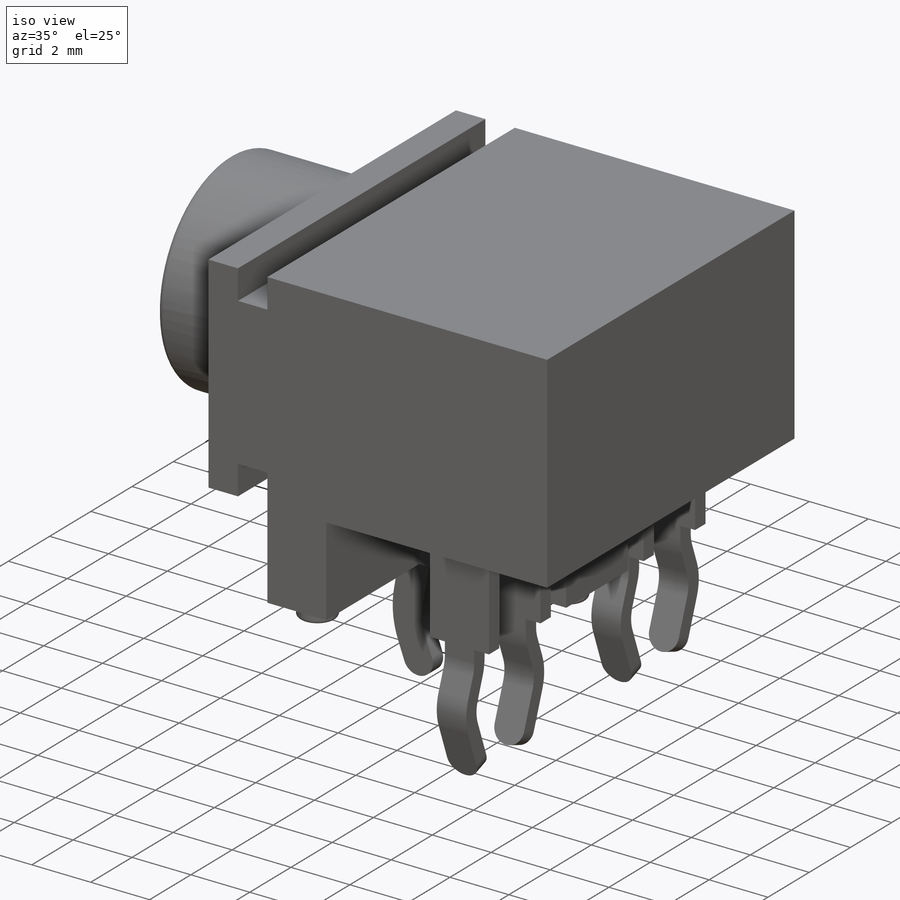
[diagram: iso view]
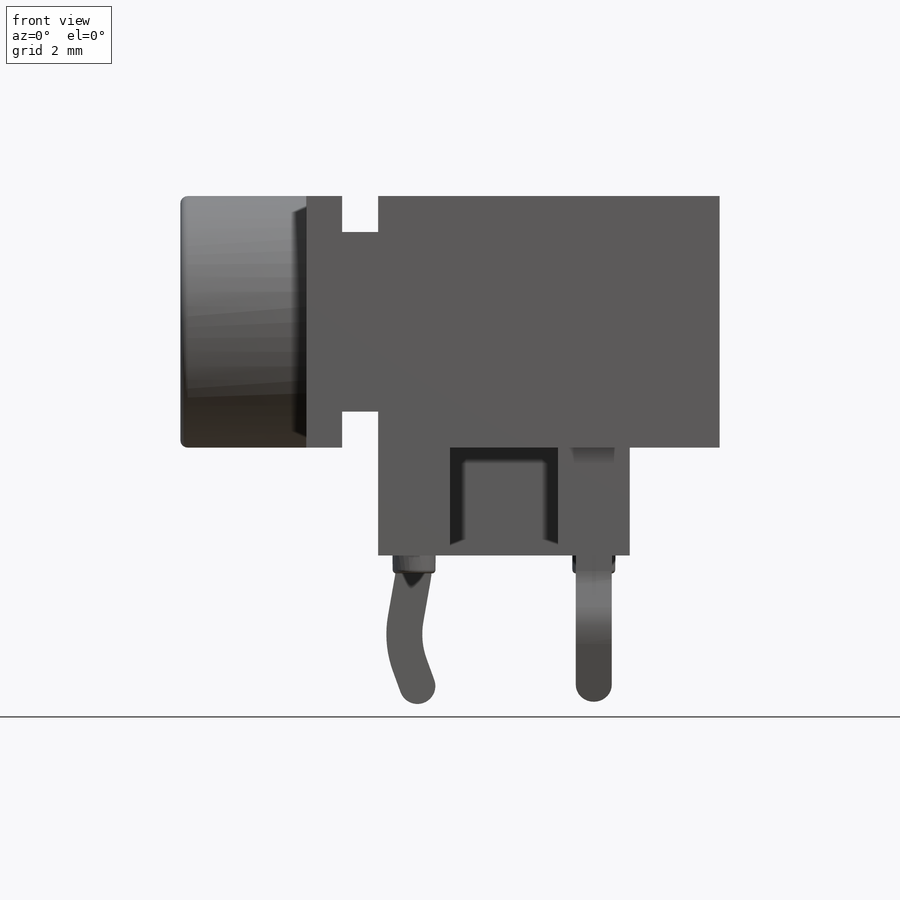
[diagram: front view]
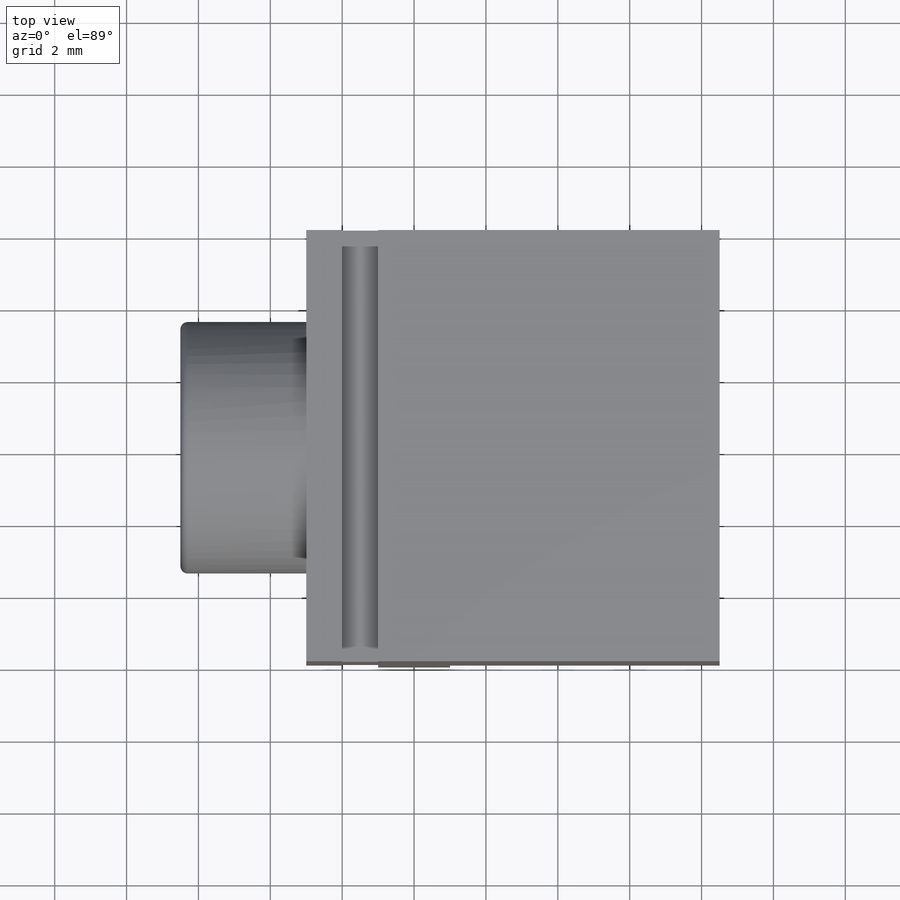
[diagram: top view]
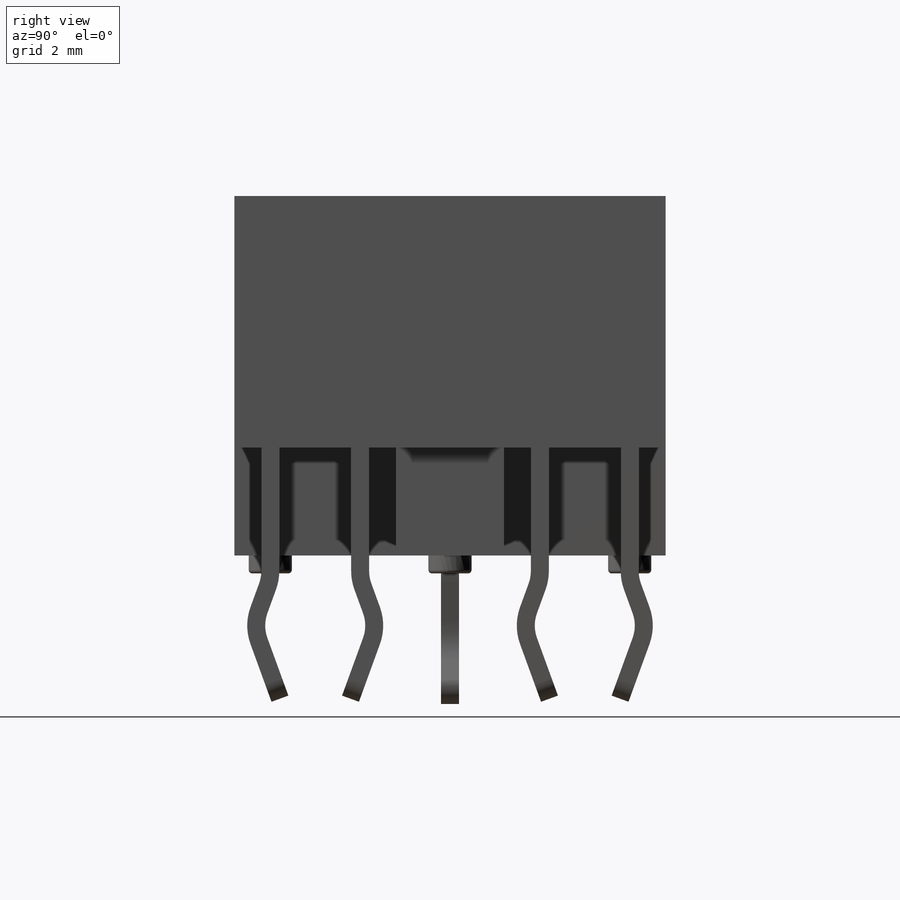
[diagram: right view]
SOLIDWORKS PART (.sldprt)
format: sldprt  version: not decoded by parser v0  size: 999,936 bytes
history: native  units: mm
features: extrude x7, sheet_metal_op x7, plane x6, fillet x4, cut_extrude x4, sketch x3, mirror x2, material x1 + 22 further entries (+11 scaffold rows collapsed)
feature tree (67):
  scaffold x11  (default folders/planes/origin — collapsed)
  material  "Material <not specified>"
  plane  "Plane1"  Offset=0mm
  plane  "Плоскость2"  Offset=3.75mm
  plane  "Плоскость портал"  Offset=3mm
  plane  "Плоскость3"  Offset=4.75mm
  plane  "Плоскость вывода 1"  Offset=0.25mm
  plane  "Плоскость5"  Offset=0.5mm
  sketch  "Sketch1"  dims[D1=12.0mm D2=11.5mm D3=3.0mm]
  extrude  "Пластик - тело"  [1 undecoded]
  extrude  "PW2_UID_val"  Depth=10mm
  "Sketch4"
  sketch  "pw2 (3)"
  extrude  "PW2_UID_val"  Depth=3.5mm
  fillet  "Скругление2"  Radius=0.2mm
  "Эскиз4"
  cut_extrude  "Верхний паз"  Depth=1mm
  "Эскиз12"
  cut_extrude  "Нижний паз"  Depth=3mm
  "Эскиз13"
  cut_extrude  "Углубление"  Depth=3mm
  "Эскиз20"
  cut_extrude  "Нижний паз 2"  Depth=1mm
  "Sketch3"
  extrude  "Пластик - выступы"  [1 undecoded]
  sketch  "pw2 (2)"
  extrude  "PW2_UID_val"  Depth=0.5mm
  fillet  "Скругление4"  Radius=0.1mm
  "Эскиз23"
  sheet_metal_op  "Листовой металл1"
  extrude  "Листовой металл5"  Depth=0.05mm Толщина=0.5mm
  sheet_metal_op  "Базовая кромка1"
  "Эскиз31"
  "Преобразование эскиза9"
  "Эскиз32"  Нарисованный сгиб9=0
  sheet_metal_op  "Преобразование эскиза10"
  "Эскиз сгиба4"
  fillet  "Скругление5"  Radius=0.499mm
  mirror  "Зеркальное отражение1"
  mirror  "Зеркальное отражение2"
  "Эскиз42"
  extrude  "Листовой металл7"  Depth=0.05mm
  sheet_metal_op  "Базовая кромка3"
  "Эскиз45"  Нарисованный сгиб19=0
  sheet_metal_op  "Преобразование эскиза20"
  "Эскиз сгиба14"
  "Эскиз46"  Нарисованный сгиб20=0
  sheet_metal_op  "Преобразование эскиза21"
  "Эскиз сгиба15"
  fillet  "Скругление6"  Radius=0.499mm
  "Развертка1"
  "Сгиб-Линии1"
  sheet_metal_op  "Преобразование эскиза1"
  "Развертка5"
  "Сгиб-Линии5"
  "Развертка7"
  "Сгиб-Линии7"
decode coverage: 14 of 27 modeling features carry decoded parameters; 22 rows unclassified (native names shown)
note: 2 parameter values undecoded
note: suppression state not decoded; provenance and decode notes live in map.json
